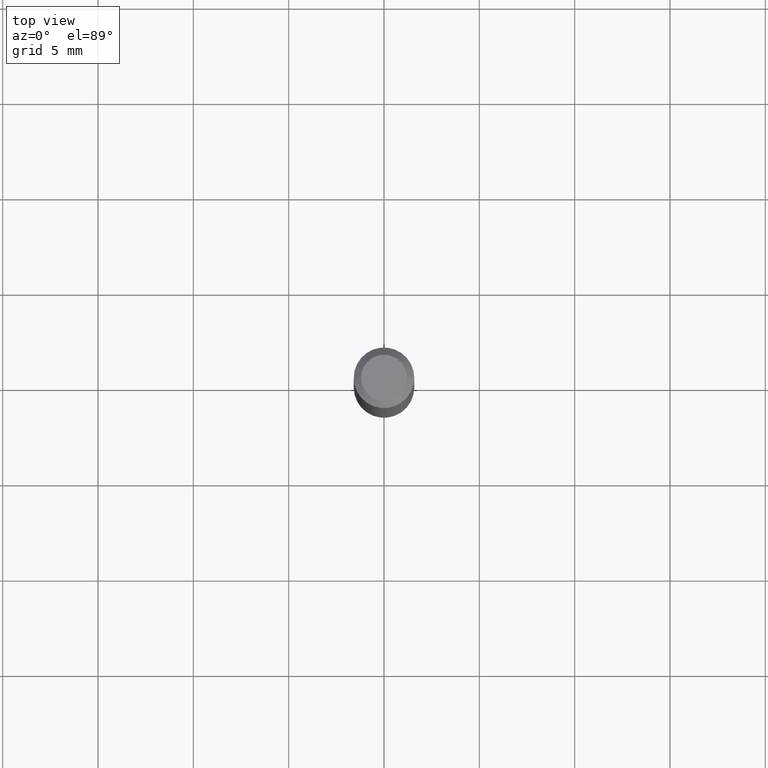
[diagram: clean part render]
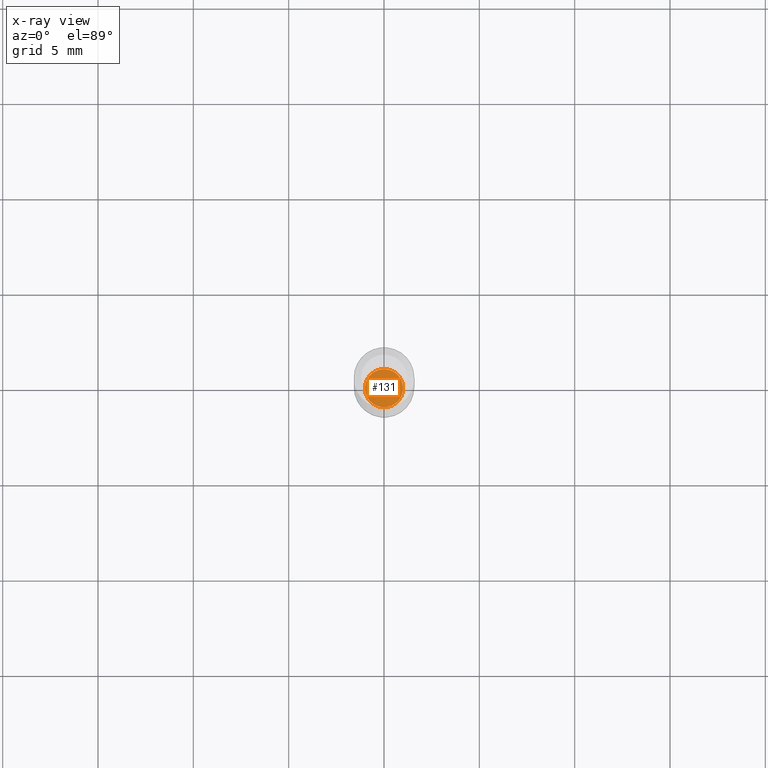
[diagram: x-ray — body ghosted, one internal face saturated and labeled with its STEP entity id]
A machine part, top view, then the same camera in x-ray: the body is ghosted and one INTERNAL B-rep face — a face not visible from any outside direction — is saturated and labeled: STEP entity #131.
In plain terms, the highlighted planar face has unit normal (-0, 0, 1).
Its self-contained STEP definition (entity closure, byte-faithful):
#6 = CARTESIAN_POINT ( 'NONE',  ( -0.03950000000000001427, -4.115952879143013491E-15, -1.260000000000000231 ) ) ;
#17 = DIRECTION ( 'NONE',  ( 1.000000000000000000, -6.982962677686269077E-15, 0.000000000000000000 ) ) ;
#60 = CARTESIAN_POINT ( 'NONE',  ( 3.081290695793272291E-29, -4.399266486942364120E-15, -1.260000000000000231 ) ) ;
#86 = CIRCLE ( 'NONE', #340, 0.03950000000000001427 ) ;
#87 = CARTESIAN_POINT ( 'NONE',  ( 3.081290695793272291E-29, -4.399266486942364120E-15, -1.260000000000000231 ) ) ;
#88 = ORIENTED_EDGE ( 'NONE', *, *, #375, .F. ) ;
#99 = CIRCLE ( 'NONE', #116, 0.03950000000000001427 ) ;
#116 = AXIS2_PLACEMENT_3D ( 'NONE', #60, #332, #256 ) ;
#124 = PLANE ( 'NONE',  #189 ) ;
#131 = ADVANCED_FACE ( 'NONE', ( #405 ), #124, .F. ) ;
#156 = DIRECTION ( 'NONE',  ( -2.438088387897960049E-29, 3.491481338843145188E-15, 1.000000000000000000 ) ) ;
#176 = VERTEX_POINT ( 'NONE', #6 ) ;
#178 = DIRECTION ( 'NONE',  ( -2.445468806185136597E-29, 3.491481338843145583E-15, 1.000000000000000000 ) ) ;
#185 = CARTESIAN_POINT ( 'NONE',  ( 3.081290695793272291E-29, -4.399266486942364120E-15, -1.260000000000000231 ) ) ;
#189 = AXIS2_PLACEMENT_3D ( 'NONE', #87, #156, #434 ) ;
#232 = CARTESIAN_POINT ( 'NONE',  ( 0.03950000000000001427, -4.675093512710971939E-15, -1.260000000000000231 ) ) ;
#256 = DIRECTION ( 'NONE',  ( 1.000000000000000000, -6.982962677686269077E-15, 0.000000000000000000 ) ) ;
#264 = ORIENTED_EDGE ( 'NONE', *, *, #450, .F. ) ;
#279 = EDGE_LOOP ( 'NONE', ( #88, #264 ) ) ;
#332 = DIRECTION ( 'NONE',  ( -2.445468806185136597E-29, 3.491481338843145583E-15, 1.000000000000000000 ) ) ;
#340 = AXIS2_PLACEMENT_3D ( 'NONE', #185, #178, #17 ) ;
#375 = EDGE_CURVE ( 'NONE', #509, #176, #99, .T. ) ;
#405 = FACE_OUTER_BOUND ( 'NONE', #279, .T. ) ;
#434 = DIRECTION ( 'NONE',  ( 1.000000000000000000, -6.982962677686265922E-15, 4.876176775795935793E-29 ) ) ;
#450 = EDGE_CURVE ( 'NONE', #176, #509, #86, .T. ) ;
#509 = VERTEX_POINT ( 'NONE', #232 ) ;